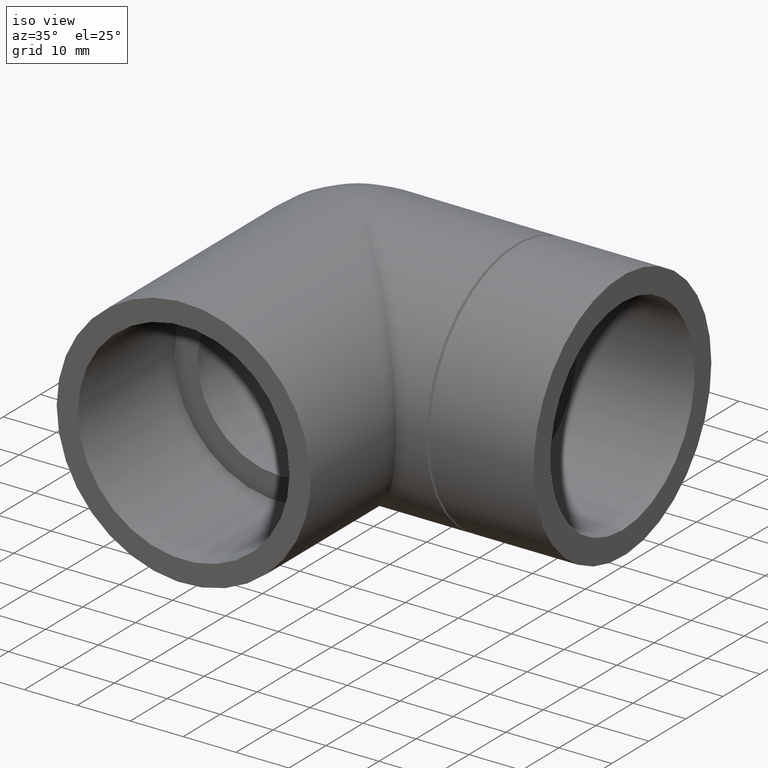
[diagram: clean part render]
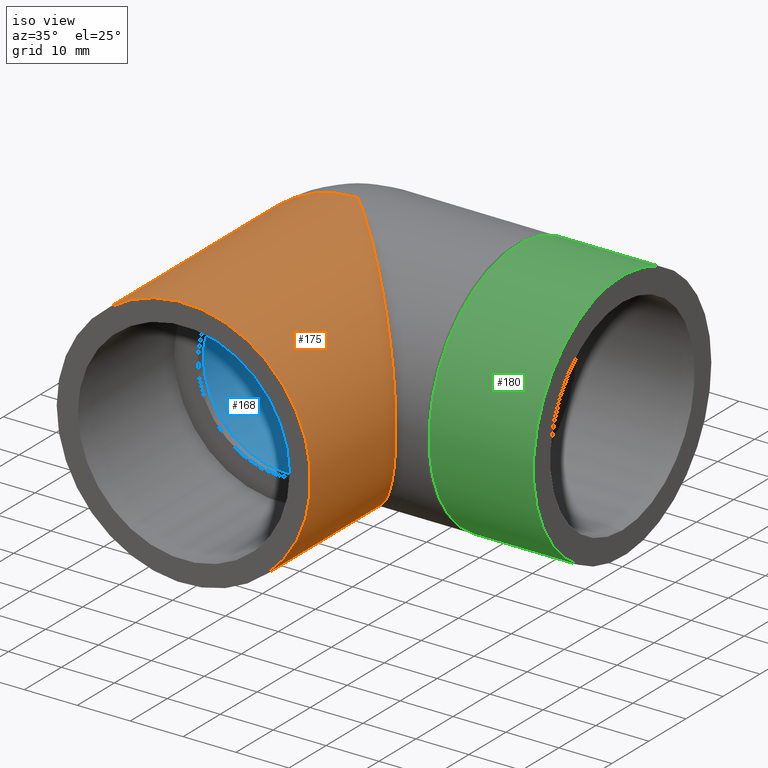
[diagram: same view with three faces highlighted in distinct colors, each labeled with its STEP entity id]
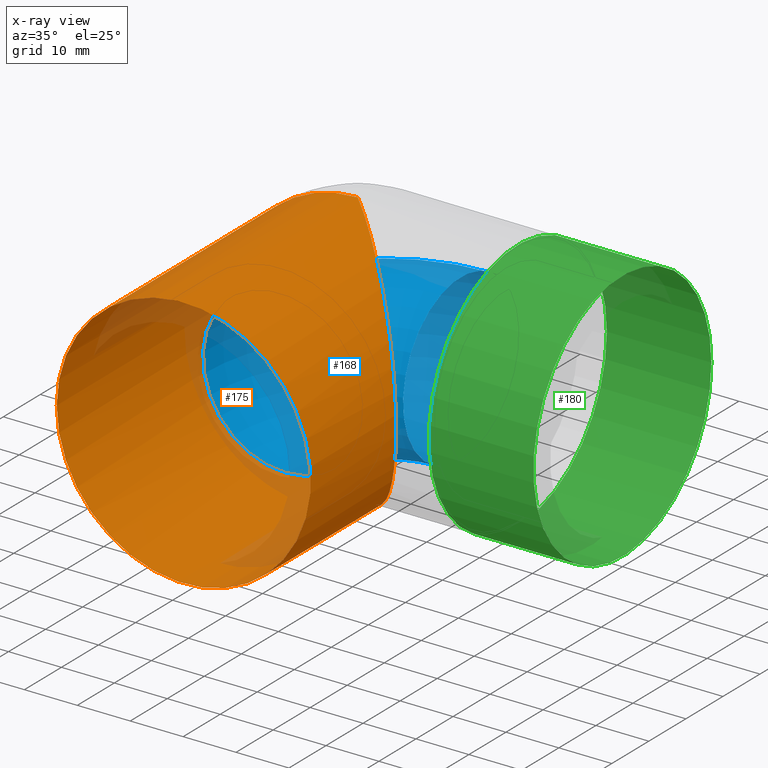
[diagram: x-ray of the same camera — body ghosted, the three highlighted faces saturated]
A machine part, iso view with three faces highlighted in distinct colors.
The next image is the same camera in x-ray (body ghosted, the three faces saturated) — at least one of them is partly hidden behind the body in this view.
Their STEP definitions:

[orange] entity #175 — the highlighted cylindrical surface (bore or boss wall) has radius 24 mm, axis along (-0, 1, 0).
#17=ELLIPSE('',#204,33.9411254969543,24.);
#31=FACE_BOUND('',#69,.T.);
#46=FACE_OUTER_BOUND('',#68,.T.);
#68=EDGE_LOOP('',(#144));
#69=EDGE_LOOP('',(#145,#146));
#91=CIRCLE('',#201,24.);
#92=CIRCLE('',#203,24.);
#105=VERTEX_POINT('',#304);
#106=VERTEX_POINT('',#305);
#107=VERTEX_POINT('',#309);
#121=EDGE_CURVE('',#105,#106,#91,.T.);
#122=EDGE_CURVE('',#107,#107,#92,.T.);
#123=EDGE_CURVE('',#106,#105,#17,.T.);
#144=ORIENTED_EDGE('',*,*,#122,.T.);
#145=ORIENTED_EDGE('',*,*,#123,.F.);
#146=ORIENTED_EDGE('',*,*,#121,.F.);
#164=CYLINDRICAL_SURFACE('',#202,24.);
#175=ADVANCED_FACE('',(#46,#31),#164,.T.);
#201=AXIS2_PLACEMENT_3D('',#307,#251,#252);
#202=AXIS2_PLACEMENT_3D('',#308,#253,#254);
#203=AXIS2_PLACEMENT_3D('',#310,#255,#256);
#204=AXIS2_PLACEMENT_3D('',#311,#257,#258);
#251=DIRECTION('center_axis',(-1.22464679914735E-16,1.,0.));
#252=DIRECTION('ref_axis',(1.,1.22464679914735E-16,0.));
#253=DIRECTION('center_axis',(-1.22464679914735E-16,1.,0.));
#254=DIRECTION('ref_axis',(-1.,0.,0.));
#255=DIRECTION('center_axis',(-1.22464679914735E-16,1.,0.));
#256=DIRECTION('ref_axis',(1.,1.22464679914735E-16,0.));
#257=DIRECTION('center_axis',(0.707106781186547,0.707106781186548,0.));
#258=DIRECTION('ref_axis',(-0.707106781186548,0.707106781186547,0.));
#304=CARTESIAN_POINT('',(0.,-1.79971173919423E-31,-24.));
#305=CARTESIAN_POINT('',(0.,-1.79971173919423E-31,24.));
#307=CARTESIAN_POINT('Origin',(0.,0.,0.));
#308=CARTESIAN_POINT('Origin',(2.87791997799628E-15,-23.5,0.));
#309=CARTESIAN_POINT('',(-24.,-47.,0.));
#310=CARTESIAN_POINT('Origin',(5.75583995599256E-15,-47.,0.));
#311=CARTESIAN_POINT('Origin',(0.,0.,0.));

[blue] entity #168 — the highlighted toroidal blend (fillet) surface has major radius 19.476 mm and minor (blend) radius 15.5808 mm.
#23=TOROIDAL_SURFACE('',#187,19.476,15.5808);
#25=FACE_BOUND('',#56,.T.);
#39=FACE_OUTER_BOUND('',#55,.T.);
#55=EDGE_LOOP('',(#130));
#56=EDGE_LOOP('',(#131));
#83=CIRCLE('',#186,15.5808);
#84=CIRCLE('',#188,15.5808);
#98=VERTEX_POINT('',#283);
#99=VERTEX_POINT('',#286);
#113=EDGE_CURVE('',#98,#98,#83,.T.);
#114=EDGE_CURVE('',#99,#99,#84,.T.);
#130=ORIENTED_EDGE('',*,*,#113,.T.);
#131=ORIENTED_EDGE('',*,*,#114,.F.);
#168=ADVANCED_FACE('',(#39,#25),#23,.F.);
#186=AXIS2_PLACEMENT_3D('',#284,#221,#222);
#187=AXIS2_PLACEMENT_3D('',#285,#223,#224);
#188=AXIS2_PLACEMENT_3D('',#287,#225,#226);
#221=DIRECTION('center_axis',(-2.83276944882399E-16,-1.,0.));
#222=DIRECTION('ref_axis',(0.,0.,1.));
#223=DIRECTION('center_axis',(0.,0.,1.));
#224=DIRECTION('ref_axis',(1.,0.,0.));
#225=DIRECTION('center_axis',(-1.,0.,0.));
#226=DIRECTION('ref_axis',(0.,0.,1.));
#283=CARTESIAN_POINT('',(-1.90077590619677E-15,-19.476,-15.5808));
#284=CARTESIAN_POINT('Origin',(7.32177861873785E-18,-19.476,0.));
#285=CARTESIAN_POINT('Origin',(19.476,-19.476,0.));
#286=CARTESIAN_POINT('',(19.476,1.90077590619677E-15,-15.5808));
#287=CARTESIAN_POINT('Origin',(19.476,-7.32177861873785E-18,0.));

[green] entity #180 — the highlighted cylindrical surface (bore or boss wall) has radius 24 mm, axis along (1, 0, 0).
#36=FACE_BOUND('',#79,.T.);
#51=FACE_OUTER_BOUND('',#78,.T.);
#78=EDGE_LOOP('',(#156));
#79=EDGE_LOOP('',(#157));
#95=CIRCLE('',#211,24.);
#96=CIRCLE('',#213,24.);
#110=VERTEX_POINT('',#320);
#111=VERTEX_POINT('',#323);
#126=EDGE_CURVE('',#110,#110,#95,.T.);
#127=EDGE_CURVE('',#111,#111,#96,.T.);
#156=ORIENTED_EDGE('',*,*,#126,.T.);
#157=ORIENTED_EDGE('',*,*,#127,.F.);
#166=CYLINDRICAL_SURFACE('',#212,24.);
#180=ADVANCED_FACE('',(#51,#36),#166,.T.);
#211=AXIS2_PLACEMENT_3D('',#321,#271,#272);
#212=AXIS2_PLACEMENT_3D('',#322,#273,#274);
#213=AXIS2_PLACEMENT_3D('',#324,#275,#276);
#271=DIRECTION('center_axis',(1.,0.,0.));
#272=DIRECTION('ref_axis',(0.,0.,-1.));
#273=DIRECTION('center_axis',(1.,0.,0.));
#274=DIRECTION('ref_axis',(0.,1.,0.));
#275=DIRECTION('center_axis',(1.,0.,0.));
#276=DIRECTION('ref_axis',(0.,0.,-1.));
#320=CARTESIAN_POINT('',(30.25,24.,0.));
#321=CARTESIAN_POINT('Origin',(30.25,0.,0.));
#322=CARTESIAN_POINT('Origin',(40.125,0.,0.));
#323=CARTESIAN_POINT('',(50.,24.,0.));
#324=CARTESIAN_POINT('Origin',(50.,0.,0.));